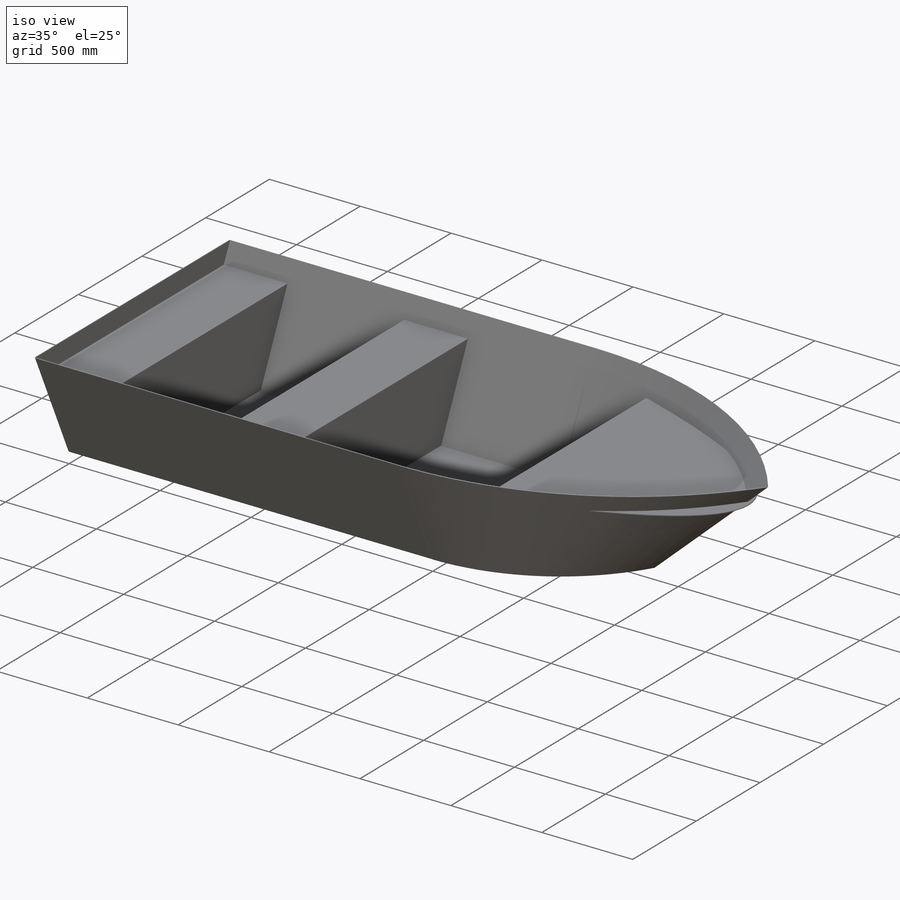
[diagram: iso view]
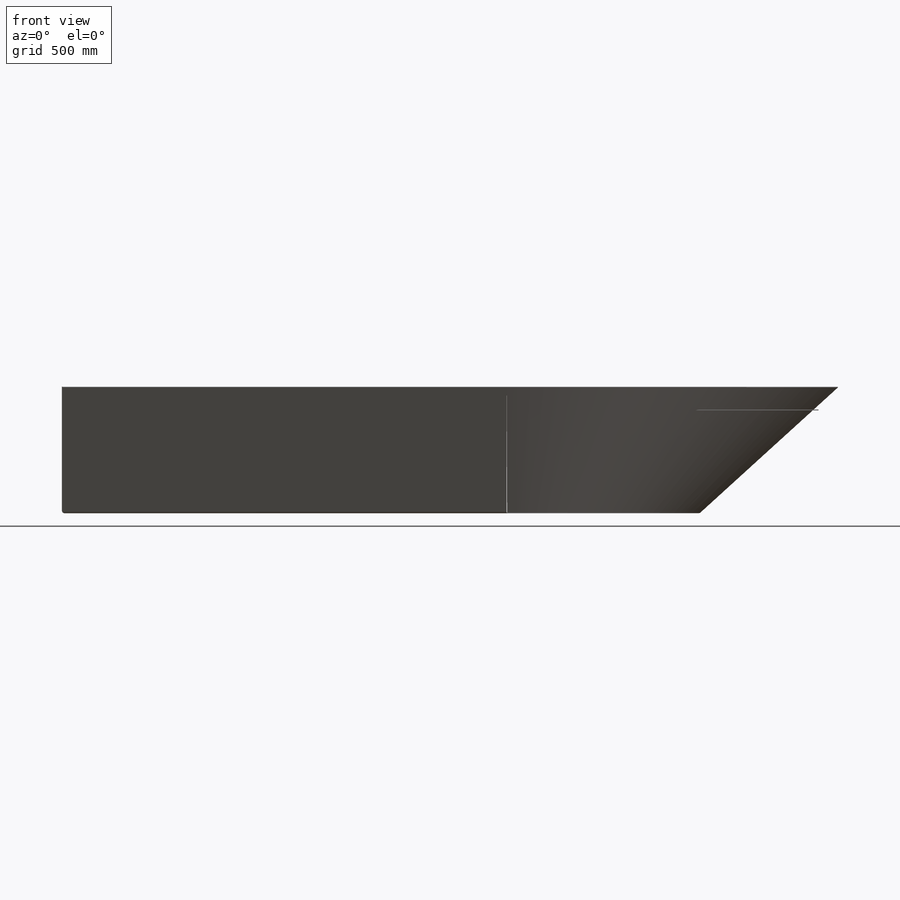
[diagram: front view]
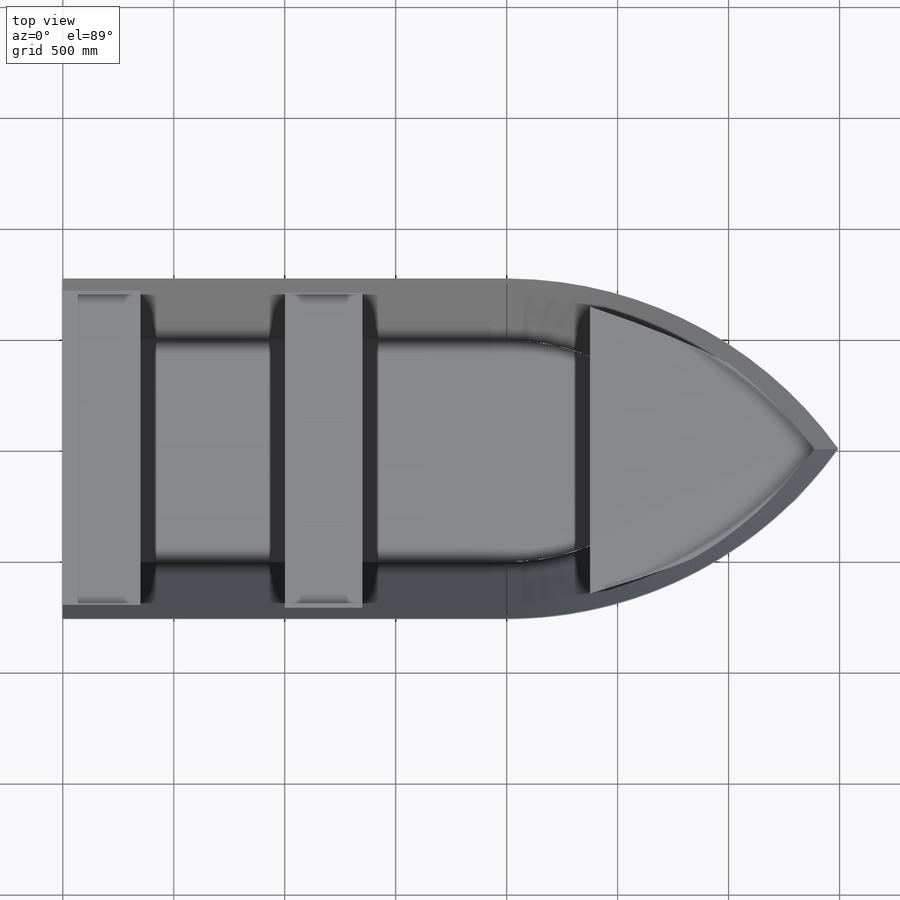
[diagram: top view]
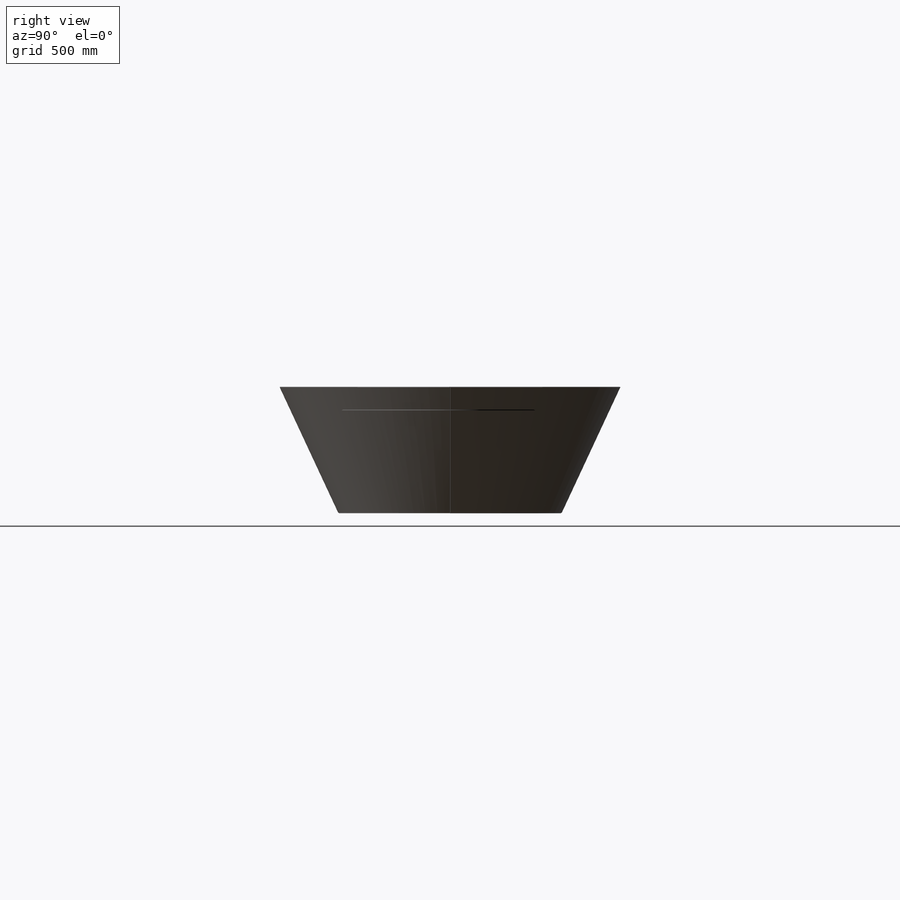
[diagram: right view]
SOLIDWORKS PART (.sldprt)
format: sldprt  version: not decoded by parser v0  size: 822,272 bytes
history: native  units: mm
features: sketch x28, sheet_metal_op x8, plane x7, extrude x5, mirror x2, material x1 + 8 further entries (+9 scaffold rows collapsed; 8 parser-record rows omitted)
feature tree (76):
  scaffold x9  (default folders/planes/origin — collapsed)
  material  "Material <nicht festgelegt>"
  plane  "Ebene vorne"
  plane  "Ebene oben"
  plane  "Ebene rechts"
  sketch  "Skizze1"  dims[D1=2000.0mm D2=1000.0mm]
  extrude  "Aufsatz-Linear austragen1"  Depth=4mm
  sketch  "Skizze13"
  sketch  "Skizze14"  dims[c1.D1=8.0mm c1.D4=65.0deg c1.D5=1.0 c1.D8=2.0mm c1.D9=2.0mm c1.Kantenbiegung2=0.0 c2.D1=8.0mm c2.D4=65.0deg c2.D5=2.0 c2.D8=2.0mm c2.D9=2.0mm c3.D1=8.0mm c3.D2=500.0mm c3.D3=0.0mm c3.D6=10.0mm c3.D7=625.0mm c3.D8=0.5mm]
  extrude  "Kante-Lasche2"  [1 undecoded]
  sketch  "Skizze19"  dims[c1.Kantenbiegung3=0.0 c1.D1=8.0mm c1.D4=90.0deg c1.D5=3.0 c1.D8=2.0mm c1.D9=2.0mm c2.D1=8.0mm c2.D2=500.0mm c2.D3=0.0mm c2.D6=10.0mm c2.D7=~566.442367mm c3.D1=2000.0mm c4.D1=2000.0mm]
  plane  "Ebene1"
  plane  "Ebene2"  Offset=10mm
  sketch  "Skizze27"  dims[D1=625.0mm]
  sketch  "Skizze28"
  sketch  "Skizze29"  dims[c1.D1=1000.0mm c1.D4=~57.29578deg c1.D5=1.0 c1.D8=2.0mm c1.D9=2.0mm c2.D1=0.0mm]
  mirror  "Spiegeln1"
  mirror  "AbgeleiteteBiegung1"
  plane  "Ebene11"  Offset=1000mm
  sketch  "Skizze80"  dims[c1.D1=450.0mm c1.D2=1000.0mm c1.D3=1419.68mm c1.D4=~508.124838mm c2.D4=65.0deg c2.D5=450.0mm c3.D5=~64.999675deg c4.D5=1419.68mm]
  extrude  "Aufsatz-Linear austragen6"  Depth=350mm
  sketch  "Skizze88"  dims[c1.D1=450.0mm c1.D2=1000.0mm c1.D3=1419.68mm c1.D4=~508.124838mm c2.D4=65.0deg c2.D5=450.0mm c3.D5=~64.999675deg c4.D5=1419.68mm]
  extrude  "Aufsatz-Linear austragen8"  Depth=350mm
  plane  "Ebene12"
  sketch  "Skizze94"
  extrude  "Aufsatz-Linear austragen10"  Depth=4mm
  sketch  "Biegung-Linien1"
  sketch  "Rahmen1"
  sheet_metal_op  "Blech(2)"
  "Abwicklung(2)"
  sketch  "Biegung-Linien2"
  sketch  "Rahmen2"
  parser-record x8  (decoder bookkeeping rows leaked as tree rows — omitted from the tree; the rows remain in map.json)
  sheet_metal_op  "Blech(3)"
  "Abwicklung(2)"
  sketch  "Biegung-Linien3"
  sketch  "Rahmen3"
  sheet_metal_op  "Blech(4)"
  "Abwicklung(2)"
  sketch  "Biegung-Linien4"
  sketch  "Rahmen4"
  sheet_metal_op  "Blech(5)"
  "Abwicklung(5)"
  sketch  "Biegung-Linien5"
  sketch  "Rahmen5"
  sheet_metal_op  "Blech(6)"
  "Abwicklung(6)"
  sketch  "Biegung-Linien6"
  sketch  "Rahmen6"
  sheet_metal_op  "Blech(13)"
  "Abwicklung(2)"
  sketch  "Biegung-Linien9"
  sketch  "Rahmen9"
  sheet_metal_op  "Blech(15)"
  "Abwicklung(2)"
  sketch  "Biegung-Linien11"
  sketch  "Rahmen11"
  sheet_metal_op  "Blech(17)"
  "Abwicklung(5)"
  sketch  "Biegung-Linien13"
  sketch  "Rahmen13"
decode coverage: 11 of 43 modeling features carry decoded parameters; 8 rows unclassified (native names shown)
note: ~ marks probable driven/reference dimensions
note: 1 parameter value undecoded
note: suppression state not decoded; provenance and decode notes live in map.json
